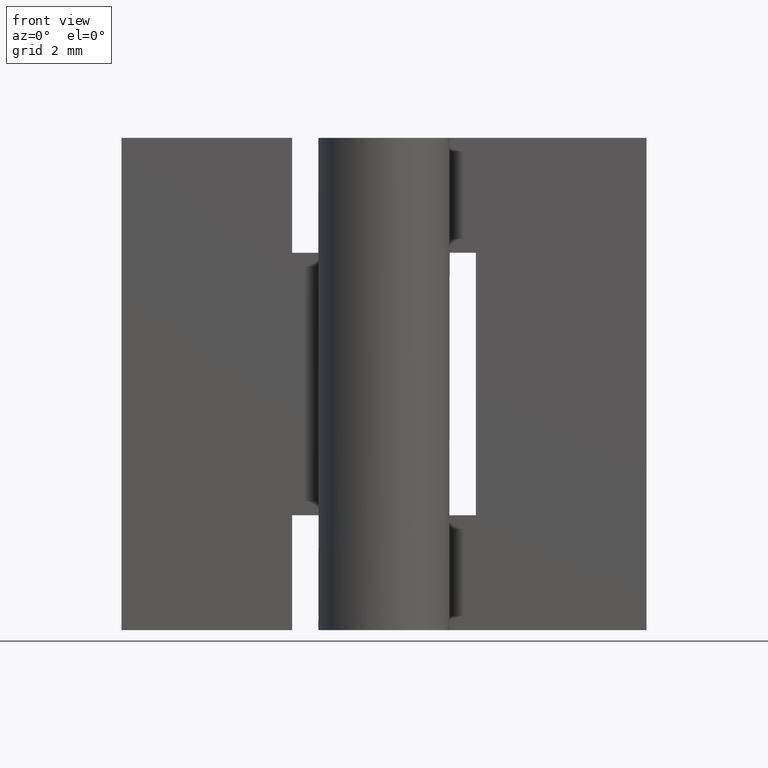
[diagram: clean part render]
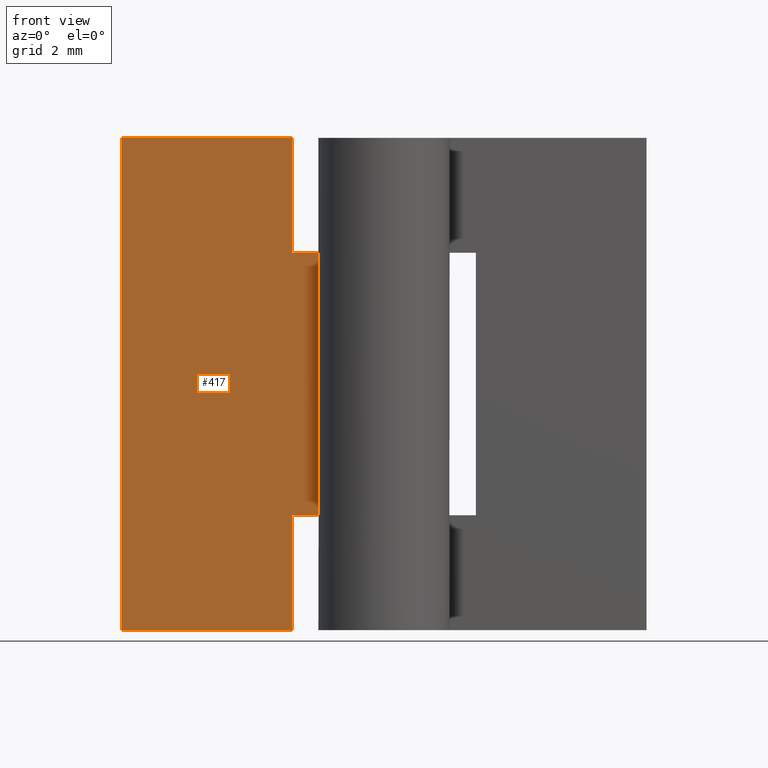
[diagram: same view with one face highlighted and labeled with its STEP entity id]
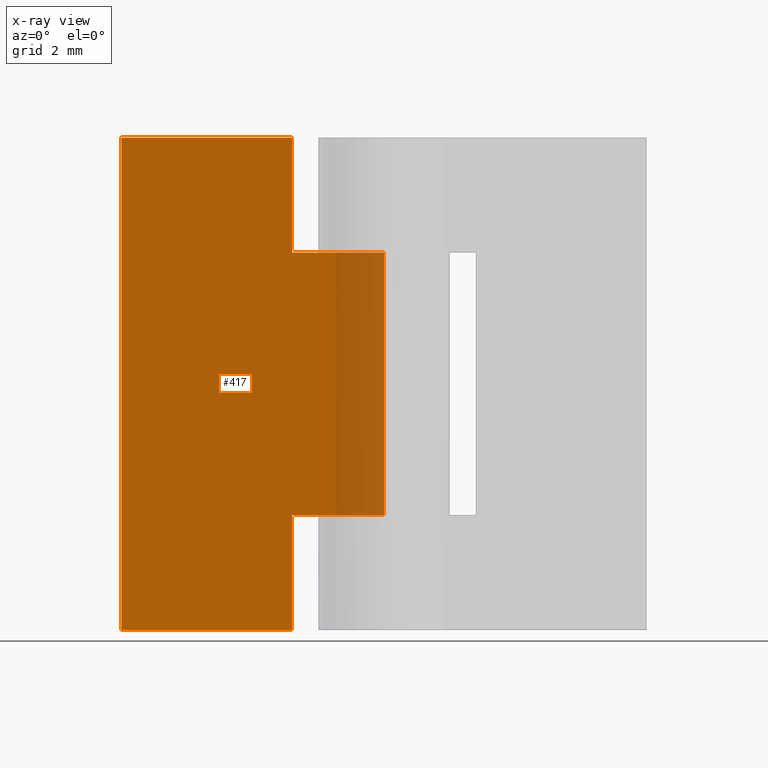
[diagram: x-ray of the same camera — body ghosted, the highlighted face saturated]
A machine part, front view. The second image highlights one B-rep face of the part: STEP entity #417.
The next image is the same camera in x-ray: the body ghosted, the highlighted face saturated — about 12% of this face is hidden behind the body in this view.
In plain terms, the highlighted face is a freeform B-spline surface patch.
Its self-contained STEP definition (entity closure, byte-faithful):
#49=CARTESIAN_POINT('',(-2.800003000000000,1.0,0.0));
#50=VERTEX_POINT('',#49);
#65=CARTESIAN_POINT('',(-2.800003000000000,1.0,3.500000000000100));
#66=VERTEX_POINT('',#65);
#72=CARTESIAN_POINT('',(-2.800003000000000,1.0,0.0));
#73=CARTESIAN_POINT('',(-2.800003000000000,1.0,3.500000000000100));
#74=QUASI_UNIFORM_CURVE('',1,(#72,#73),.UNSPECIFIED.,.F.,.U.);
#75=EDGE_CURVE('',#50,#66,#74,.T.);
#121=CARTESIAN_POINT('',(-2.220446E-016,1.0,3.500000000000060));
#122=VERTEX_POINT('',#121);
#142=CARTESIAN_POINT('',(-2.800003000000000,1.0,3.500000000000100));
#143=CARTESIAN_POINT('',(-2.220446E-016,1.0,3.500000000000060));
#144=QUASI_UNIFORM_CURVE('',1,(#142,#143),.UNSPECIFIED.,.F.,.U.);
#145=EDGE_CURVE('',#66,#122,#144,.T.);
#155=CARTESIAN_POINT('',(-2.800003000000000,1.0,11.500000000000000));
#156=VERTEX_POINT('',#155);
#171=CARTESIAN_POINT('',(-2.800003000000000,1.0,15.0));
#172=VERTEX_POINT('',#171);
#178=CARTESIAN_POINT('',(-2.800003000000000,1.0,11.500000000000000));
#179=CARTESIAN_POINT('',(-2.800003000000000,1.0,15.0));
#180=QUASI_UNIFORM_CURVE('',1,(#178,#179),.UNSPECIFIED.,.F.,.U.);
#181=EDGE_CURVE('',#156,#172,#180,.T.);
#193=CARTESIAN_POINT('',(-2.220446E-016,1.0,11.500000000000000));
#194=VERTEX_POINT('',#193);
#248=CARTESIAN_POINT('',(-2.220446E-016,1.0,11.500000000000000));
#249=CARTESIAN_POINT('',(-2.800003000000000,1.0,11.500000000000000));
#250=QUASI_UNIFORM_CURVE('',1,(#248,#249),.UNSPECIFIED.,.F.,.U.);
#251=EDGE_CURVE('',#194,#156,#250,.T.);
#262=CARTESIAN_POINT('',(-8.0,1.0,0.0));
#263=VERTEX_POINT('',#262);
#264=CARTESIAN_POINT('',(-8.0,1.0,0.0));
#265=CARTESIAN_POINT('',(-2.800003000000000,1.0,0.0));
#266=QUASI_UNIFORM_CURVE('',1,(#264,#265),.UNSPECIFIED.,.F.,.U.);
#267=EDGE_CURVE('',#263,#50,#266,.T.);
#289=CARTESIAN_POINT('',(-8.0,1.0,15.0));
#290=VERTEX_POINT('',#289);
#291=CARTESIAN_POINT('',(-8.0,1.0,15.0));
#292=CARTESIAN_POINT('',(-2.800003000000000,1.0,15.0));
#293=QUASI_UNIFORM_CURVE('',1,(#291,#292),.UNSPECIFIED.,.F.,.U.);
#294=EDGE_CURVE('',#290,#172,#293,.T.);
#387=CARTESIAN_POINT('',(-2.220446E-016,1.0,11.500000000000000));
#388=CARTESIAN_POINT('',(-2.220446E-016,1.0,3.500000000000060));
#389=QUASI_UNIFORM_CURVE('',1,(#387,#388),.UNSPECIFIED.,.F.,.U.);
#390=EDGE_CURVE('',#194,#122,#389,.T.);
#398=CARTESIAN_POINT('',(-8.399599984494447,1.0,-0.749249970927090));
#399=CARTESIAN_POINT('',(-8.399599984494447,1.0,15.749250373258439));
#400=CARTESIAN_POINT('',(0.399600199071168,1.0,-0.749249970927090));
#401=CARTESIAN_POINT('',(0.399600199071168,1.0,15.749250373258439));
#402=B_SPLINE_SURFACE_WITH_KNOTS('',1,1,((#398,#400),(#399,#401)),.UNSPECIFIED.,.F.,.F.,.U.,(2,2),(2,2),(0.0,16.498500344185530),(0.0,8.799200183565615),.UNSPECIFIED.);
#403=ORIENTED_EDGE('',*,*,#75,.T.);
#404=ORIENTED_EDGE('',*,*,#145,.T.);
#405=ORIENTED_EDGE('',*,*,#390,.F.);
#406=ORIENTED_EDGE('',*,*,#251,.T.);
#407=ORIENTED_EDGE('',*,*,#181,.T.);
#408=ORIENTED_EDGE('',*,*,#294,.F.);
#409=CARTESIAN_POINT('',(-8.0,1.0,15.0));
#410=CARTESIAN_POINT('',(-8.0,1.0,0.0));
#411=QUASI_UNIFORM_CURVE('',1,(#409,#410),.UNSPECIFIED.,.F.,.U.);
#412=EDGE_CURVE('',#290,#263,#411,.T.);
#413=ORIENTED_EDGE('',*,*,#412,.T.);
#414=ORIENTED_EDGE('',*,*,#267,.T.);
#415=EDGE_LOOP('',(#403,#404,#405,#406,#407,#408,#413,#414));
#416=FACE_OUTER_BOUND('',#415,.T.);
#417=ADVANCED_FACE('',(#416),#402,.F.);